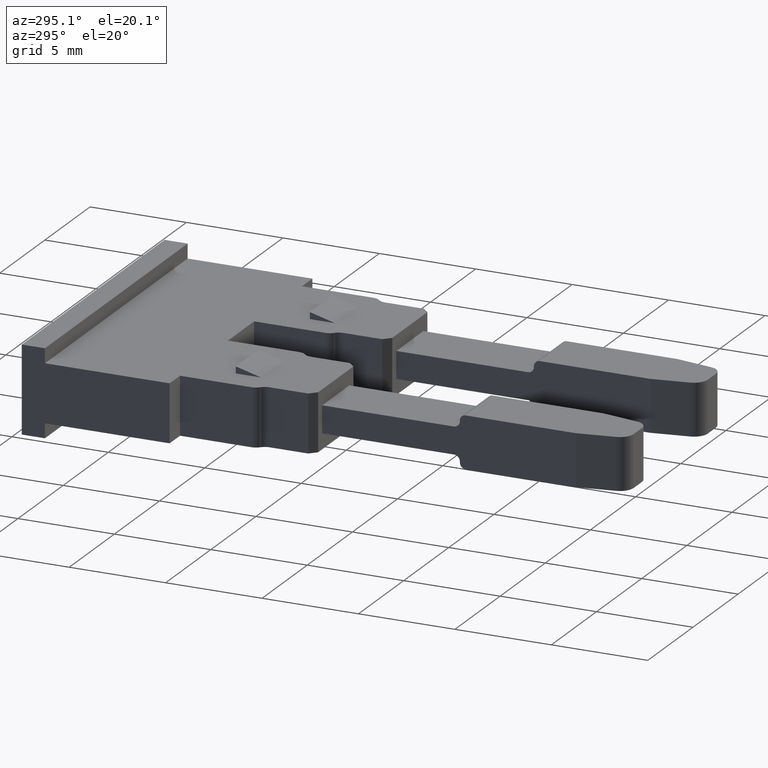
[diagram: clean part render]
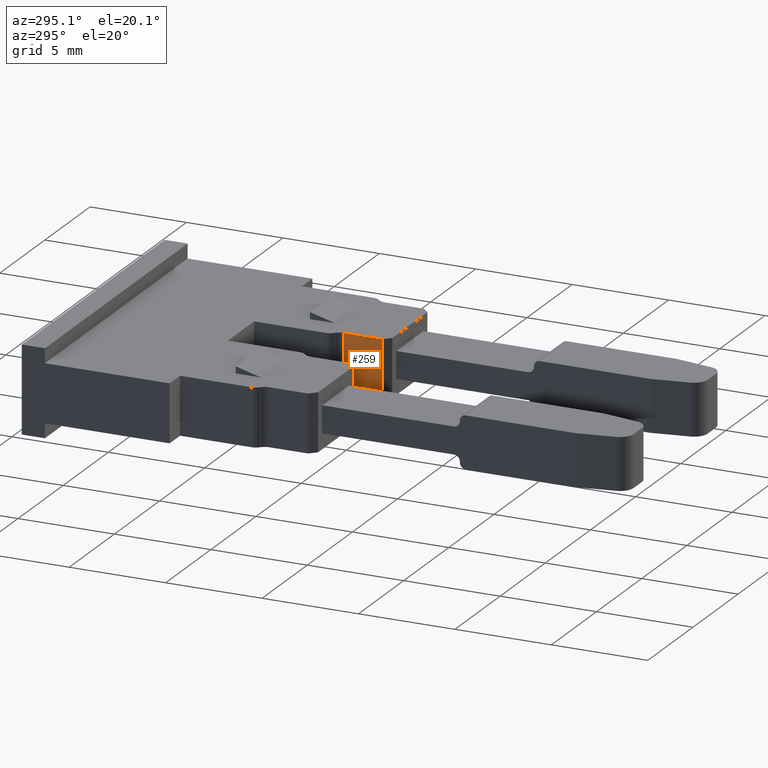
[diagram: same view with one face highlighted and labeled with its STEP entity id]
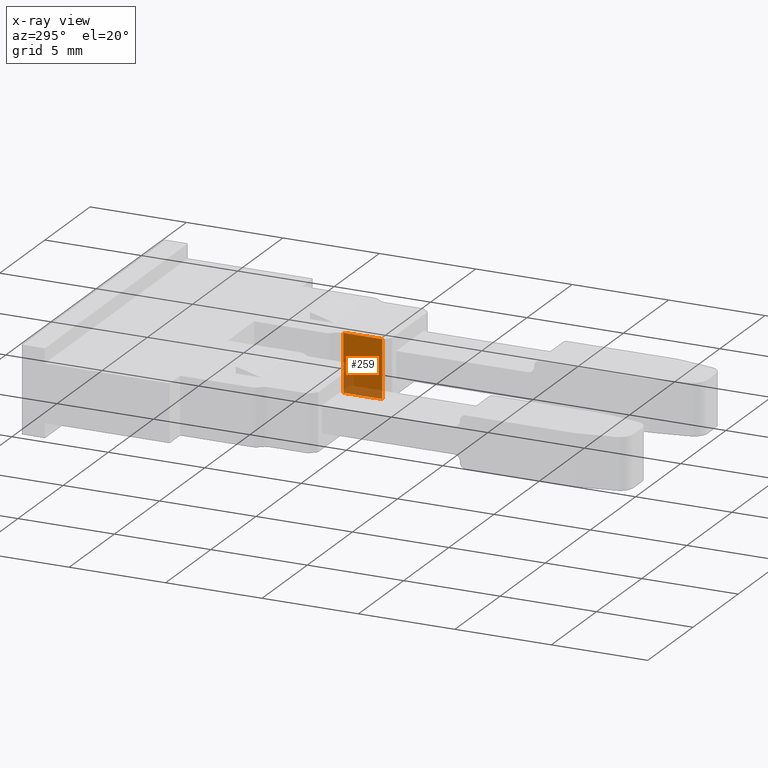
[diagram: x-ray of the same camera — body ghosted, the highlighted face saturated]
A machine part, auxiliary view. The second image highlights one B-rep face of the part: STEP entity #259.
The next image is the same camera in x-ray: the body ghosted, the highlighted face saturated — about 23% of this face is hidden behind the body in this view.
In plain terms, the highlighted planar face has unit normal (1, 0, -0).
Its self-contained STEP definition (entity closure, byte-faithful):
#137 = EDGE_CURVE ( 'NONE', #2665, #2695, #838, .T. ) ;
#192 = EDGE_CURVE ( 'NONE', #2642, #2731, #1020, .T. ) ;
#231 = EDGE_CURVE ( 'NONE', #2695, #2642, #1186, .T. ) ;
#252 = EDGE_CURVE ( 'NONE', #2665, #2731, #1200, .T. ) ;
#259 = ADVANCED_FACE ( 'NONE', ( #1266 ), #1272, .F. ) ;
#566 = CARTESIAN_POINT ( 'NONE',  ( 1148.894470360060500, 659.9592811886663000, 3.000000000000000400 ) ) ;
#589 = CARTESIAN_POINT ( 'NONE',  ( 1148.894468933274800, 661.9736497164254800, -1.084202172485504400E-016 ) ) ;
#591 = CARTESIAN_POINT ( 'NONE',  ( 1148.894468933274300, 661.9736499820405700, 3.000000000000000000 ) ) ;
#814 = CARTESIAN_POINT ( 'NONE',  ( 1148.894468933274800, 661.9736497164254800, 3.000000000000000000 ) ) ;
#838 = LINE ( 'NONE', #814, #1570 ) ;
#844 = DIRECTION ( 'NONE',  ( 0.0000000000000000000, 0.0000000000000000000, 1.000000000000000000 ) ) ;
#999 = CARTESIAN_POINT ( 'NONE',  ( 1148.894471073453100, 659.9592804752735400, 3.000000000000000000 ) ) ;
#1020 = LINE ( 'NONE', #999, #1654 ) ;
#1021 = DIRECTION ( 'NONE',  ( -0.0000000000000000000, -0.0000000000000000000, -1.000000000000000000 ) ) ;
#1162 = DIRECTION ( 'NONE',  ( 1.062455896942234500E-006, -0.9999999999994355600, -0.0000000000000000000 ) ) ;
#1178 = CARTESIAN_POINT ( 'NONE',  ( 1148.894471073453100, 659.9592804752735400, 3.000000000000000000 ) ) ;
#1186 = LINE ( 'NONE', #1178, #1727 ) ;
#1200 = LINE ( 'NONE', #1201, #1695 ) ;
#1201 = CARTESIAN_POINT ( 'NONE',  ( 1148.894468933274800, 662.7578638201010800, 0.0000000000000000000 ) ) ;
#1203 = DIRECTION ( 'NONE',  ( 0.0000000000000000000, -1.000000000000000000, -0.0000000000000000000 ) ) ;
#1252 = CARTESIAN_POINT ( 'NONE',  ( 1148.894471073453100, 659.9592804752735400, 3.000000000000000000 ) ) ;
#1265 = DIRECTION ( 'NONE',  ( -1.062455896942234500E-006, 0.9999999999994355600, 0.0000000000000000000 ) ) ;
#1266 = FACE_OUTER_BOUND ( 'NONE', #2544, .T. ) ;
#1267 = DIRECTION ( 'NONE',  ( 0.9999999999994356700, 1.062455896942234700E-006, -0.0000000000000000000 ) ) ;
#1272 = PLANE ( 'NONE',  #1757 ) ;
#1570 = VECTOR ( 'NONE', #844, 1000.000000000000000 ) ;
#1654 = VECTOR ( 'NONE', #1021, 1000.000000000000000 ) ;
#1695 = VECTOR ( 'NONE', #1203, 1000.000000000000000 ) ;
#1727 = VECTOR ( 'NONE', #1162, 1000.000000000000100 ) ;
#1757 = AXIS2_PLACEMENT_3D ( 'NONE', #1252, #1267, #1265 ) ;
#1857 = CARTESIAN_POINT ( 'NONE',  ( 1148.894470360060300, 659.9592811886663000, -1.156482317317871300E-015 ) ) ;
#2334 = ORIENTED_EDGE ( 'NONE', *, *, #252, .T. ) ;
#2371 = ORIENTED_EDGE ( 'NONE', *, *, #231, .F. ) ;
#2386 = ORIENTED_EDGE ( 'NONE', *, *, #137, .F. ) ;
#2393 = ORIENTED_EDGE ( 'NONE', *, *, #192, .F. ) ;
#2544 = EDGE_LOOP ( 'NONE', ( #2393, #2371, #2386, #2334 ) ) ;
#2642 = VERTEX_POINT ( 'NONE', #566 ) ;
#2665 = VERTEX_POINT ( 'NONE', #589 ) ;
#2695 = VERTEX_POINT ( 'NONE', #591 ) ;
#2731 = VERTEX_POINT ( 'NONE', #1857 ) ;